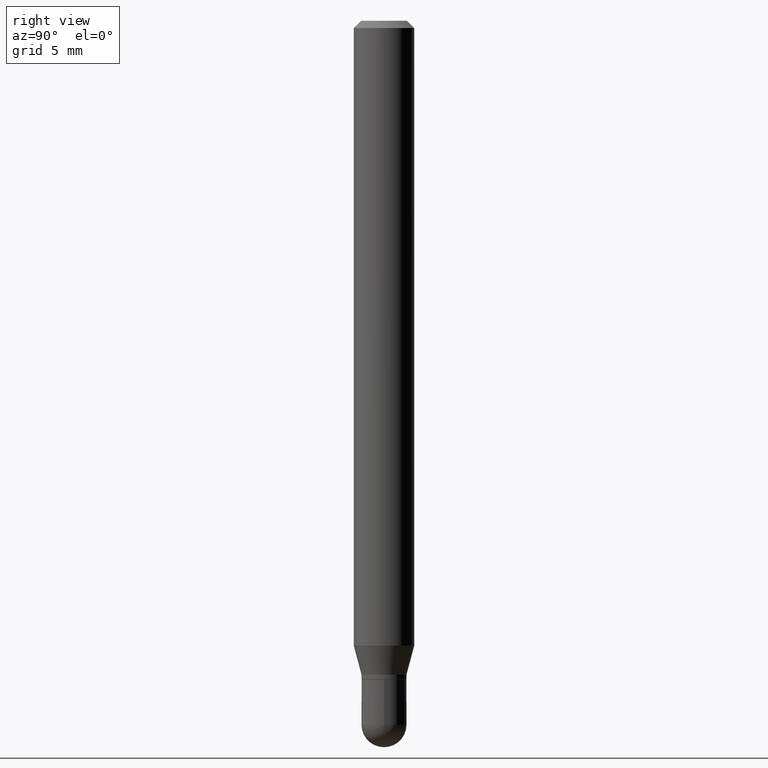
[diagram: clean part render]
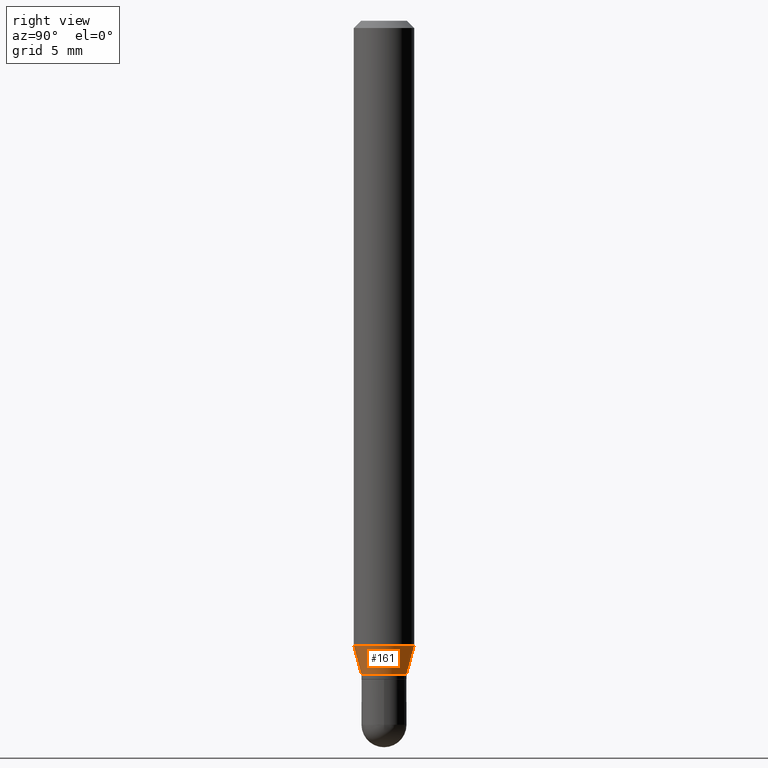
[diagram: same view with one face highlighted and labeled with its STEP entity id]
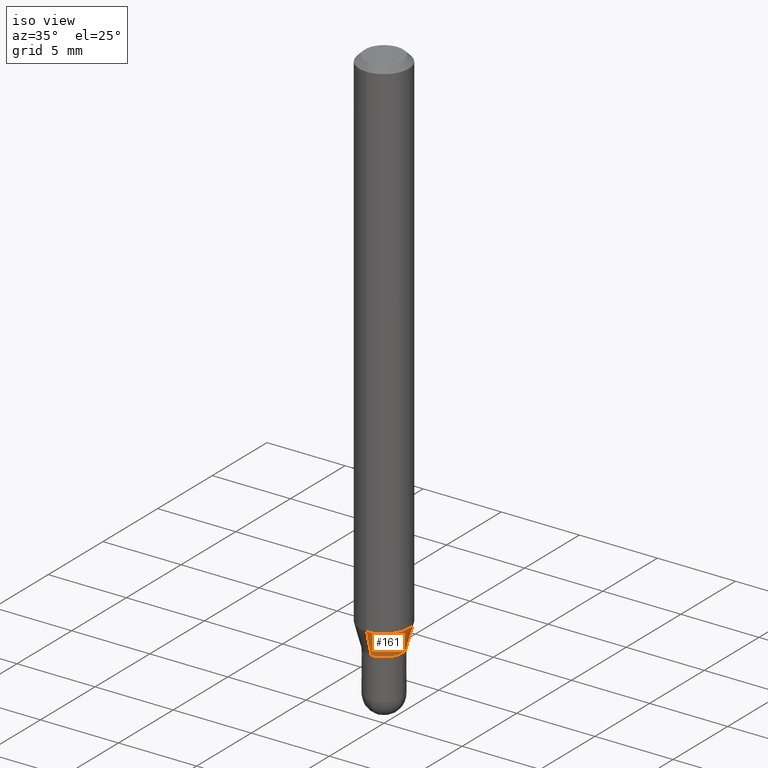
[diagram: same view with one face highlighted and labeled with its STEP entity id]
A machine part, right view. The second image highlights one B-rep face of the part: STEP entity #161.
A second angle (iso view) of the same face is appended — the face is thin or edge-on in the first view.
In plain terms, the highlighted conical surface has half-angle 15 deg.
Its self-contained STEP definition (entity closure, byte-faithful):
#15 = VECTOR ( 'NONE', #116, 39.37007874015748854 ) ;
#42 = LINE ( 'NONE', #281, #15 ) ;
#59 = VERTEX_POINT ( 'NONE', #190 ) ;
#75 = CARTESIAN_POINT ( 'NONE',  ( -4.364351673553598685E-16, -0.06250000000000446865, -1.290287187078897668 ) ) ;
#77 = FACE_OUTER_BOUND ( 'NONE', #339, .T. ) ;
#84 = EDGE_CURVE ( 'NONE', #226, #409, #147, .T. ) ;
#93 = CONICAL_SURFACE ( 'NONE', #283, 0.04649999999999993722, 0.2617993877991500740 ) ;
#97 = ORIENTED_EDGE ( 'NONE', *, *, #306, .T. ) ;
#104 = DIRECTION ( 'NONE',  ( -6.982962677686265133E-15, -1.000000000000000000, 5.874941921858638746E-15 ) ) ;
#115 = EDGE_CURVE ( 'NONE', #226, #222, #42, .T. ) ;
#116 = DIRECTION ( 'NONE',  ( -1.807323732225328562E-15, -0.2588190451025179639, 0.9659258262890690894 ) ) ;
#144 = CARTESIAN_POINT ( 'NONE',  ( 3.301340040986246399E-29, -4.713561167301768134E-15, -1.350000000000000089 ) ) ;
#147 = CIRCLE ( 'NONE', #318, 0.04649999999999993722 ) ;
#161 = ADVANCED_FACE ( 'NONE', ( #77 ), #93, .T. ) ;
#185 = LINE ( 'NONE', #307, #406 ) ;
#190 = CARTESIAN_POINT ( 'NONE',  ( 4.440892098500942692E-16, 0.06249999999999552441, -1.290287187078898112 ) ) ;
#222 = VERTEX_POINT ( 'NONE', #75 ) ;
#226 = VERTEX_POINT ( 'NONE', #239 ) ;
#229 = EDGE_CURVE ( 'NONE', #222, #59, #251, .T. ) ;
#239 = CARTESIAN_POINT ( 'NONE',  ( -3.247077645123779208E-16, -0.04650000000000464873, -1.349999999999999867 ) ) ;
#251 = CIRCLE ( 'NONE', #495, 0.06250000000000000000 ) ;
#281 = CARTESIAN_POINT ( 'NONE',  ( -3.247077645123779208E-16, -0.04650000000000464873, -1.349999999999999867 ) ) ;
#283 = AXIS2_PLACEMENT_3D ( 'NONE', #323, #475, #316 ) ;
#285 = ORIENTED_EDGE ( 'NONE', *, *, #229, .F. ) ;
#303 = CARTESIAN_POINT ( 'NONE',  ( 3.155316114870427558E-29, -4.505072281246019250E-15, -1.290287187078897890 ) ) ;
#306 = EDGE_CURVE ( 'NONE', #409, #59, #185, .T. ) ;
#307 = CARTESIAN_POINT ( 'NONE',  ( 3.304023721284790753E-16, 0.04649999999999521877, -1.350000000000000311 ) ) ;
#309 = DIRECTION ( 'NONE',  ( -2.445437067397219472E-29, 3.491526790593902555E-15, 1.000000000000000000 ) ) ;
#316 = DIRECTION ( 'NONE',  ( -6.982962677686265133E-15, -1.000000000000000000, 5.874941921858638746E-15 ) ) ;
#318 = AXIS2_PLACEMENT_3D ( 'NONE', #144, #309, #104 ) ;
#323 = CARTESIAN_POINT ( 'NONE',  ( 3.301340040986246399E-29, -4.713561167301768134E-15, -1.350000000000000089 ) ) ;
#337 = DIRECTION ( 'NONE',  ( -2.445437067397219472E-29, 3.491526790593902555E-15, 1.000000000000000000 ) ) ;
#339 = EDGE_LOOP ( 'NONE', ( #491, #97, #285, #395 ) ) ;
#349 = DIRECTION ( 'NONE',  ( 1.839019923739598738E-15, 0.2588190451025247363, 0.9659258262890673130 ) ) ;
#383 = CARTESIAN_POINT ( 'NONE',  ( 3.872457909892865983E-16, 0.04649999999999521877, -1.350000000000000311 ) ) ;
#395 = ORIENTED_EDGE ( 'NONE', *, *, #115, .F. ) ;
#406 = VECTOR ( 'NONE', #349, 39.37007874015748854 ) ;
#409 = VERTEX_POINT ( 'NONE', #383 ) ;
#410 = DIRECTION ( 'NONE',  ( -6.982962677686265922E-15, -1.000000000000000000, 4.370956789862821150E-15 ) ) ;
#475 = DIRECTION ( 'NONE',  ( -2.445437067397219472E-29, 3.491526790593902555E-15, 1.000000000000000000 ) ) ;
#491 = ORIENTED_EDGE ( 'NONE', *, *, #84, .T. ) ;
#495 = AXIS2_PLACEMENT_3D ( 'NONE', #303, #337, #410 ) ;